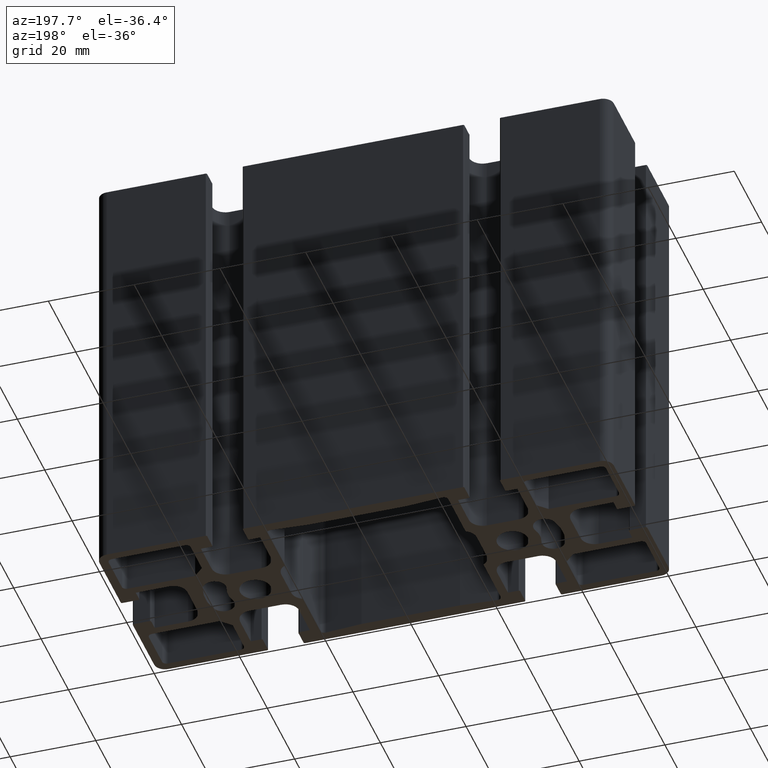
[diagram: clean part render]
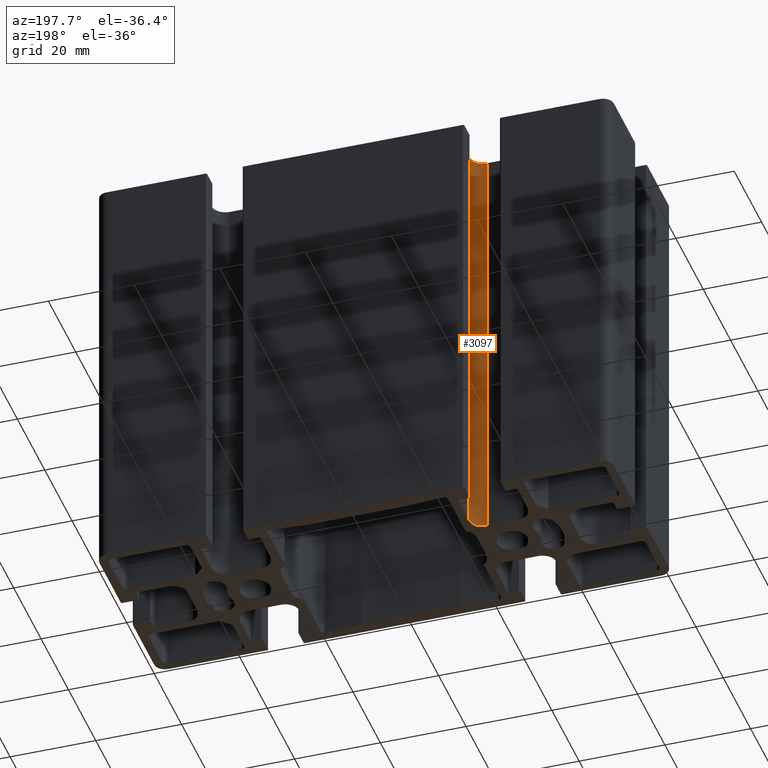
[diagram: same view with one face highlighted and labeled with its STEP entity id]
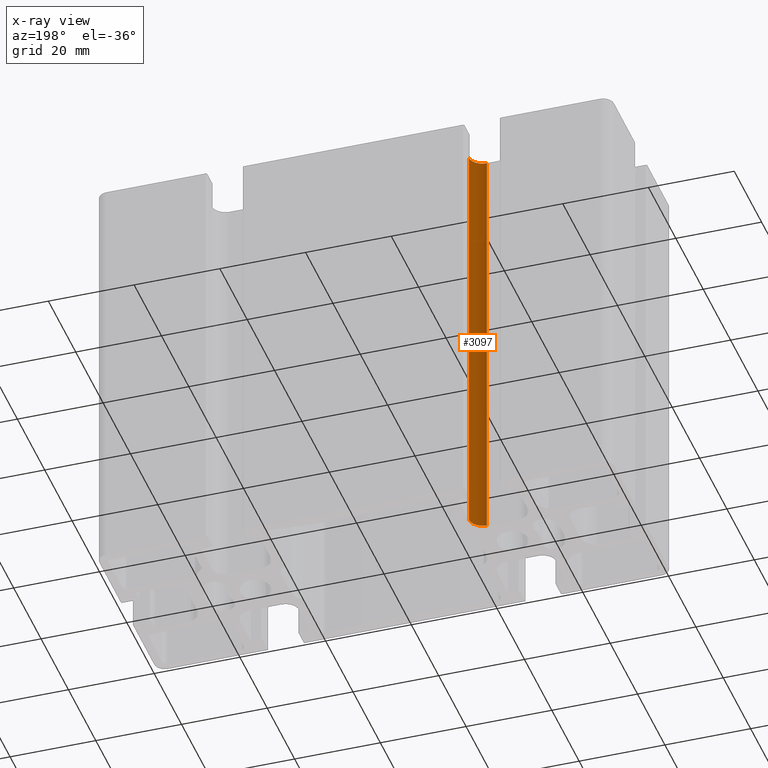
[diagram: x-ray of the same camera — body ghosted, the highlighted face saturated]
A machine part, auxiliary view. The second image highlights one B-rep face of the part: STEP entity #3097.
The next image is the same camera in x-ray: the body ghosted, the highlighted face saturated — about 0% of this face is hidden behind the body in this view.
In plain terms, the highlighted cylindrical surface (edge-blend (fillet) strip) has radius 3.2 mm, axis along (0, 0, 1).
Its self-contained STEP definition (entity closure, byte-faithful):
#67=CIRCLE('',#3292,3.2);
#68=CIRCLE('',#3293,3.2);
#199=CYLINDRICAL_SURFACE('',#3291,3.2);
#291=FACE_OUTER_BOUND('',#451,.T.);
#451=EDGE_LOOP('',(#2169,#2170,#2171,#2172));
#668=LINE('',#4685,#992);
#669=LINE('',#4691,#993);
#992=VECTOR('',#3738,100.);
#993=VECTOR('',#3745,100.);
#1315=VERTEX_POINT('',#4681);
#1316=VERTEX_POINT('',#4683);
#1317=VERTEX_POINT('',#4687);
#1318=VERTEX_POINT('',#4689);
#1664=EDGE_CURVE('',#1316,#1315,#668,.T.);
#1665=EDGE_CURVE('',#1315,#1317,#67,.T.);
#1666=EDGE_CURVE('',#1318,#1316,#68,.T.);
#1667=EDGE_CURVE('',#1318,#1317,#669,.T.);
#2169=ORIENTED_EDGE('',*,*,#1665,.F.);
#2170=ORIENTED_EDGE('',*,*,#1664,.F.);
#2171=ORIENTED_EDGE('',*,*,#1666,.F.);
#2172=ORIENTED_EDGE('',*,*,#1667,.T.);
#3097=ADVANCED_FACE('',(#291),#199,.F.);
#3291=AXIS2_PLACEMENT_3D('',#4686,#3739,#3740);
#3292=AXIS2_PLACEMENT_3D('',#4688,#3741,#3742);
#3293=AXIS2_PLACEMENT_3D('',#4690,#3743,#3744);
#3738=DIRECTION('',(0.,0.,1.));
#3739=DIRECTION('center_axis',(0.,0.,1.));
#3740=DIRECTION('ref_axis',(0.,-1.,0.));
#3741=DIRECTION('center_axis',(0.,0.,-1.));
#3742=DIRECTION('ref_axis',(0.,-1.,0.));
#3743=DIRECTION('center_axis',(0.,0.,1.));
#3744=DIRECTION('ref_axis',(0.,-1.,0.));
#3745=DIRECTION('',(0.,0.,1.));
#4681=CARTESIAN_POINT('',(-23.1,10.3999999999801,100.));
#4683=CARTESIAN_POINT('',(-23.1,10.3999999999801,0.));
#4685=CARTESIAN_POINT('',(-23.1,10.3999999999801,0.));
#4686=CARTESIAN_POINT('Origin',(-26.3,10.3999999999801,0.));
#4687=CARTESIAN_POINT('',(-26.3,7.19999999998005,100.));
#4688=CARTESIAN_POINT('Origin',(-26.3,10.3999999999801,100.));
#4689=CARTESIAN_POINT('',(-26.3,7.19999999998005,0.));
#4690=CARTESIAN_POINT('Origin',(-26.3,10.3999999999801,0.));
#4691=CARTESIAN_POINT('',(-26.3,7.19999999998005,0.));